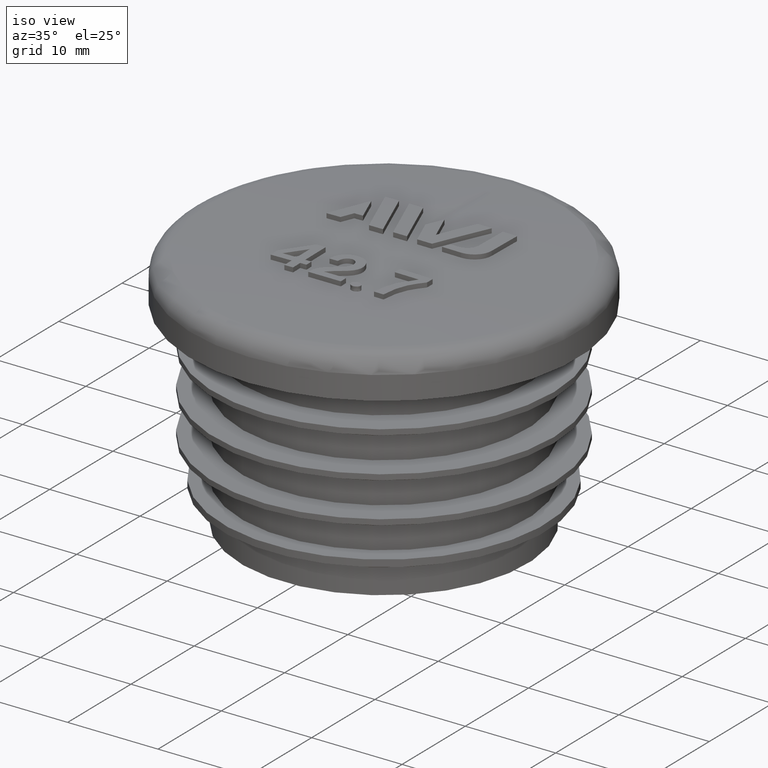
[diagram: clean part render]
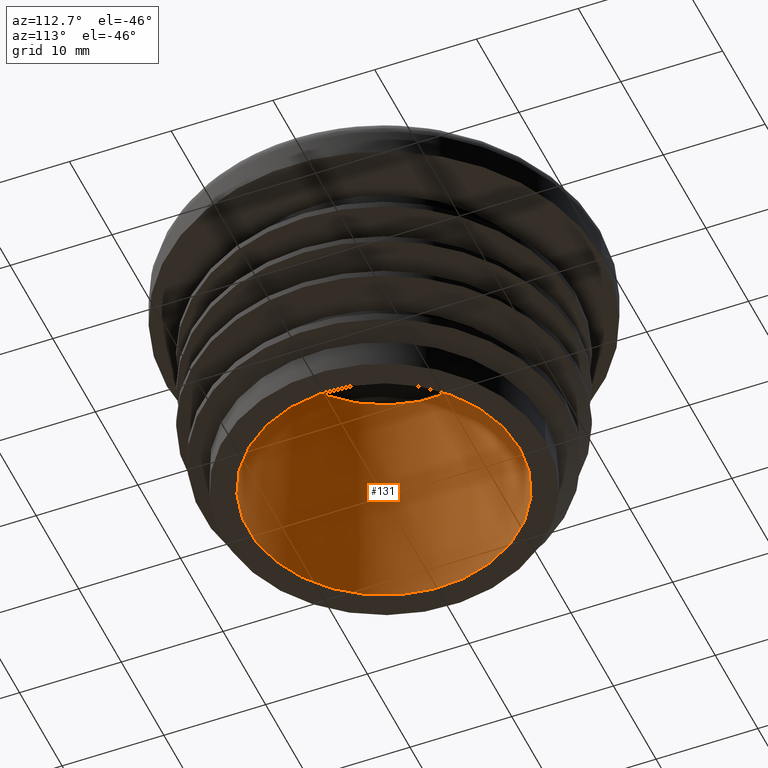
[diagram: tour spotlight — one face highlighted and labeled with its STEP entity id]
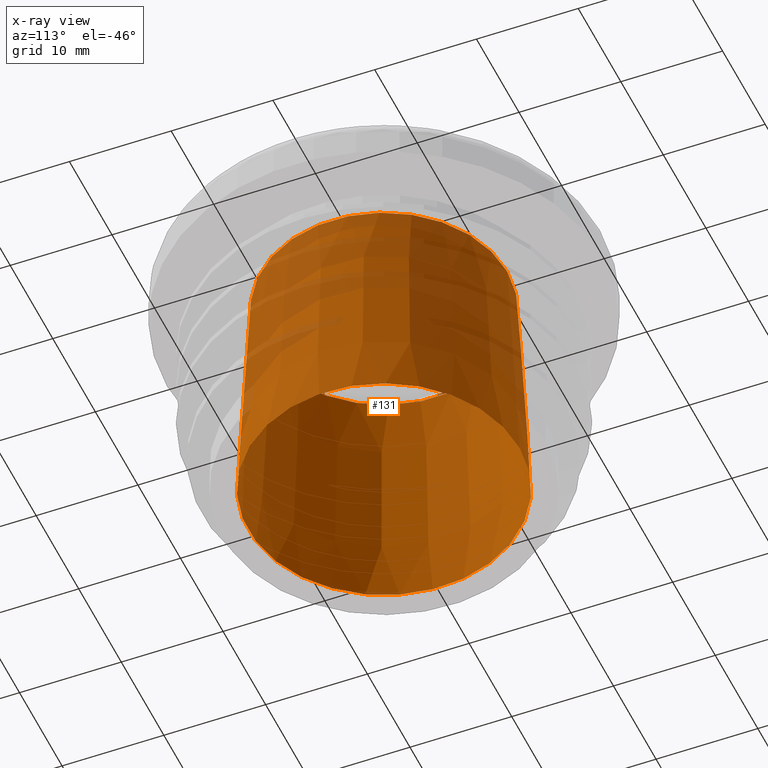
[diagram: x-ray of the same camera — body ghosted, this tour face saturated]
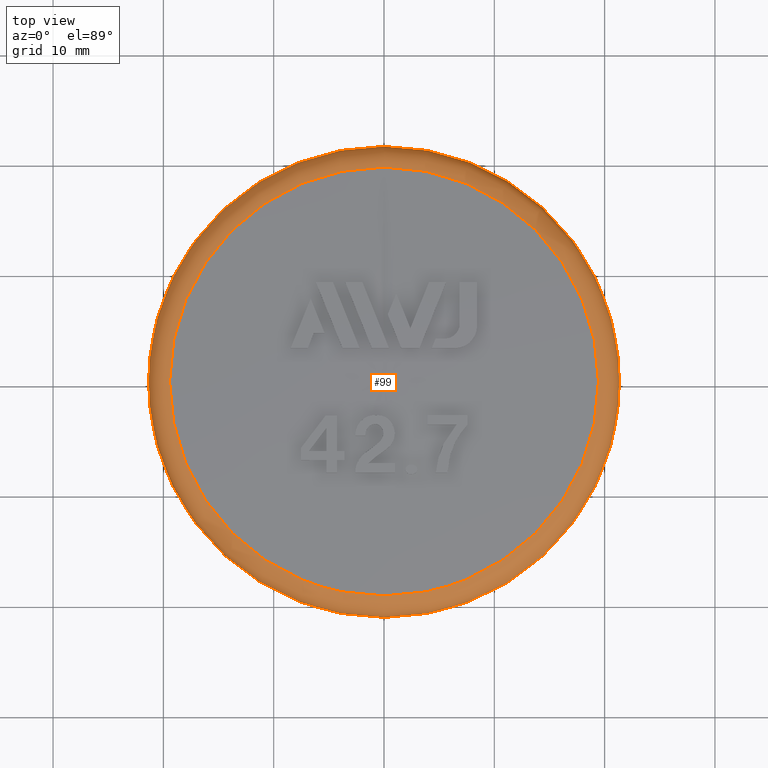
[diagram: tour spotlight — one face highlighted and labeled with its STEP entity id]
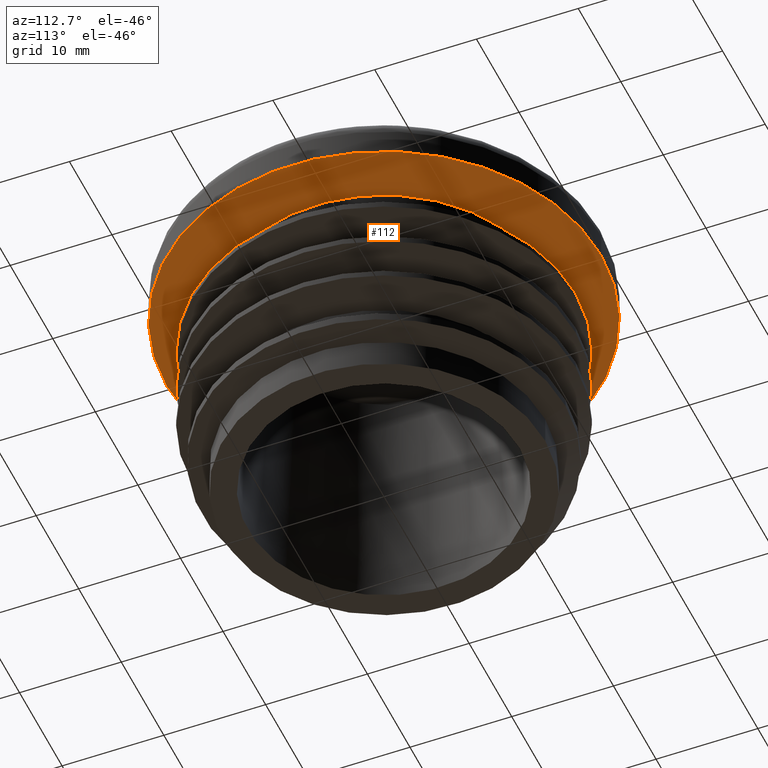
[diagram: tour spotlight — one face highlighted and labeled with its STEP entity id]
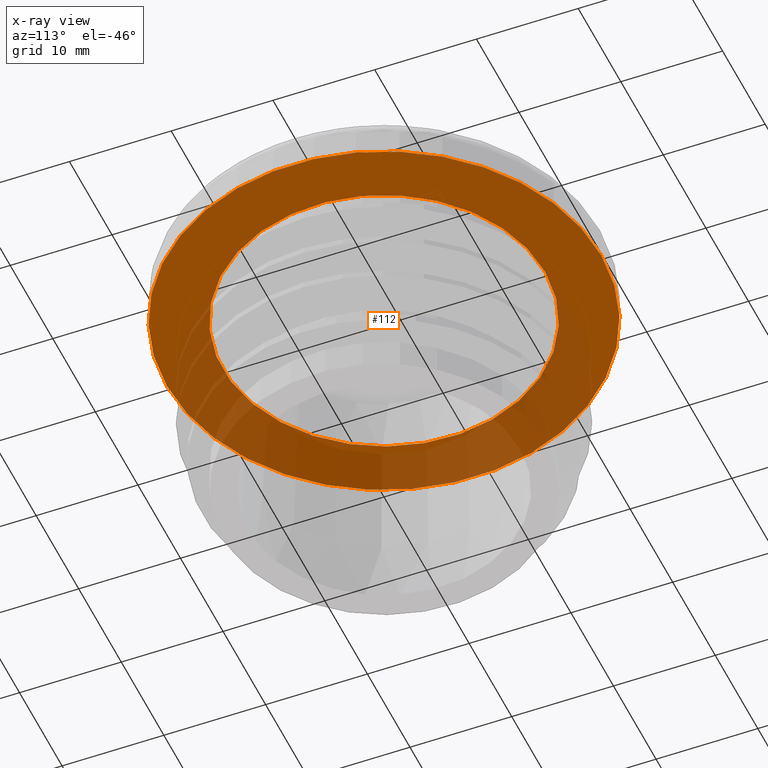
[diagram: x-ray of the same camera — body ghosted, this tour face saturated]
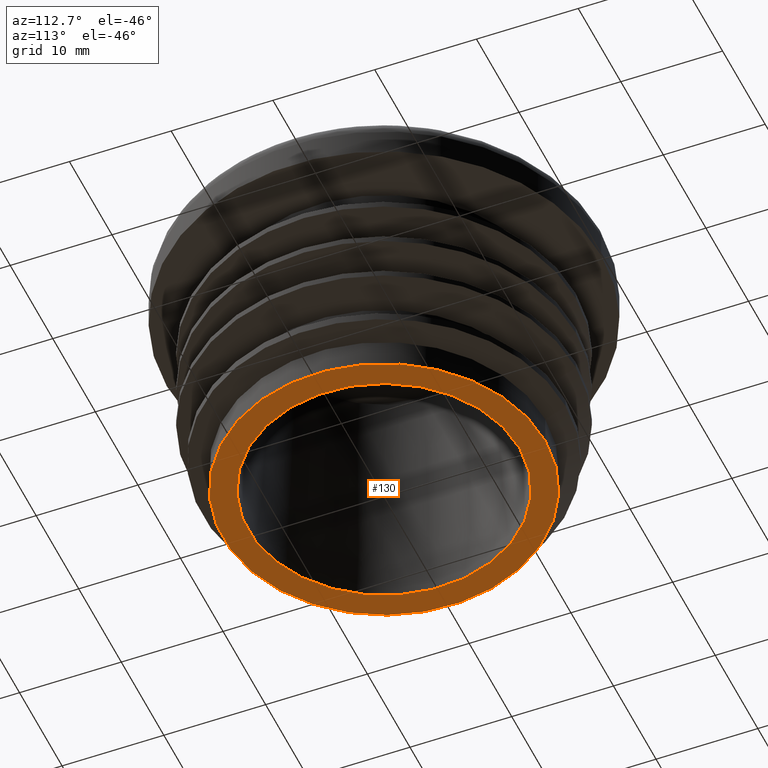
[diagram: tour spotlight — one face highlighted and labeled with its STEP entity id]
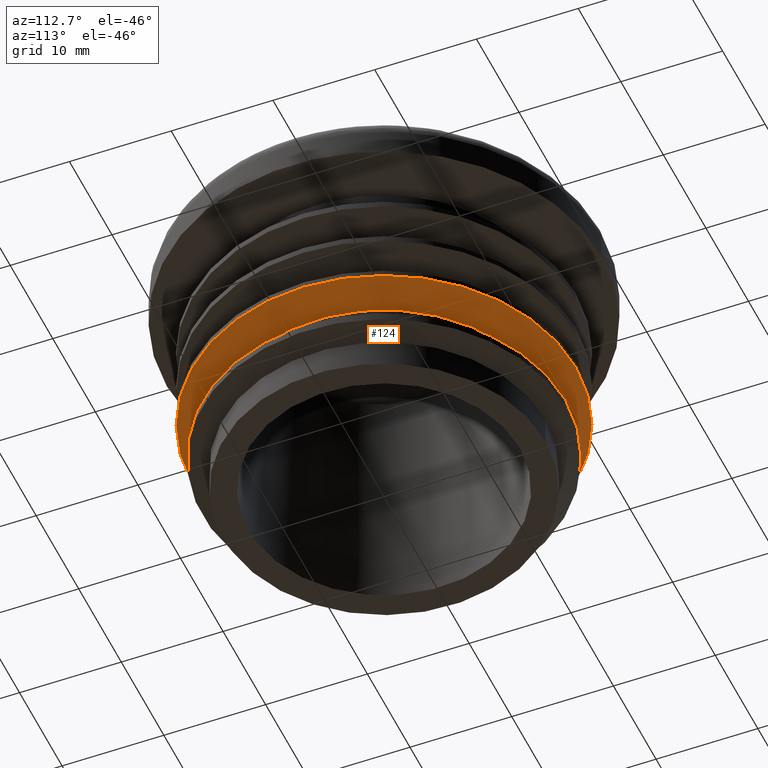
[diagram: tour spotlight — one face highlighted and labeled with its STEP entity id]
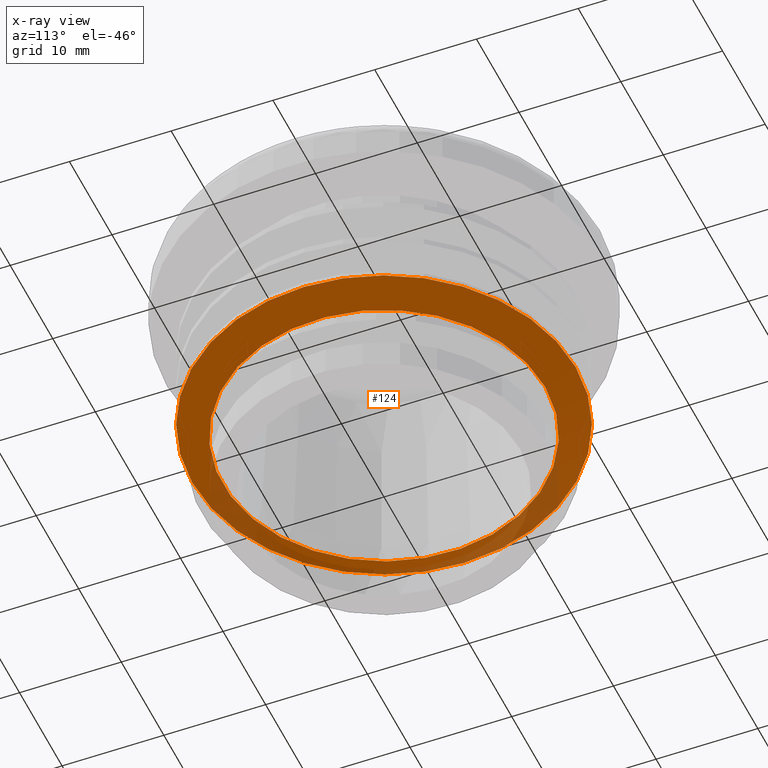
[diagram: x-ray of the same camera — body ghosted, this tour face saturated]
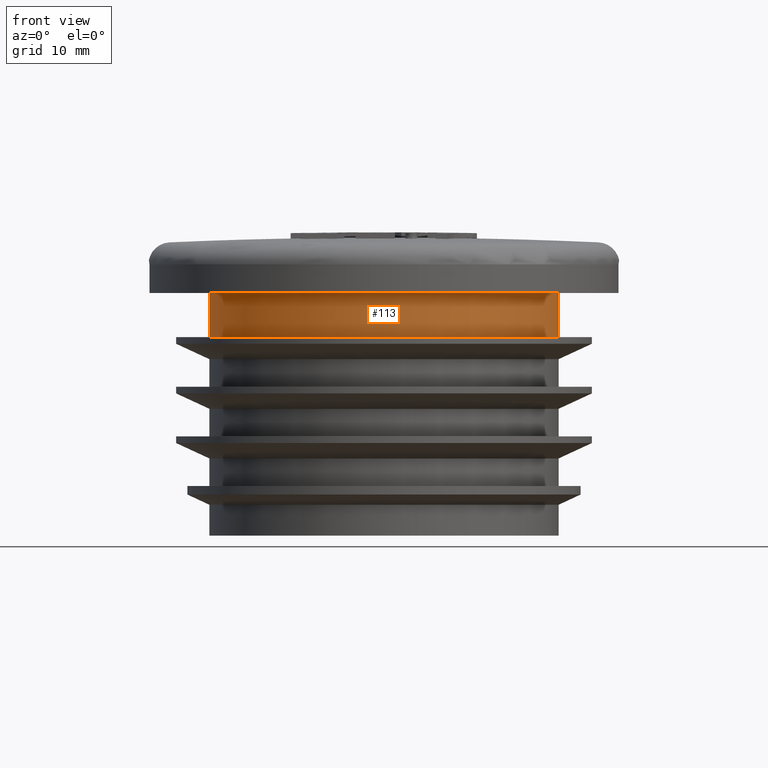
[diagram: tour spotlight — one face highlighted and labeled with its STEP entity id]
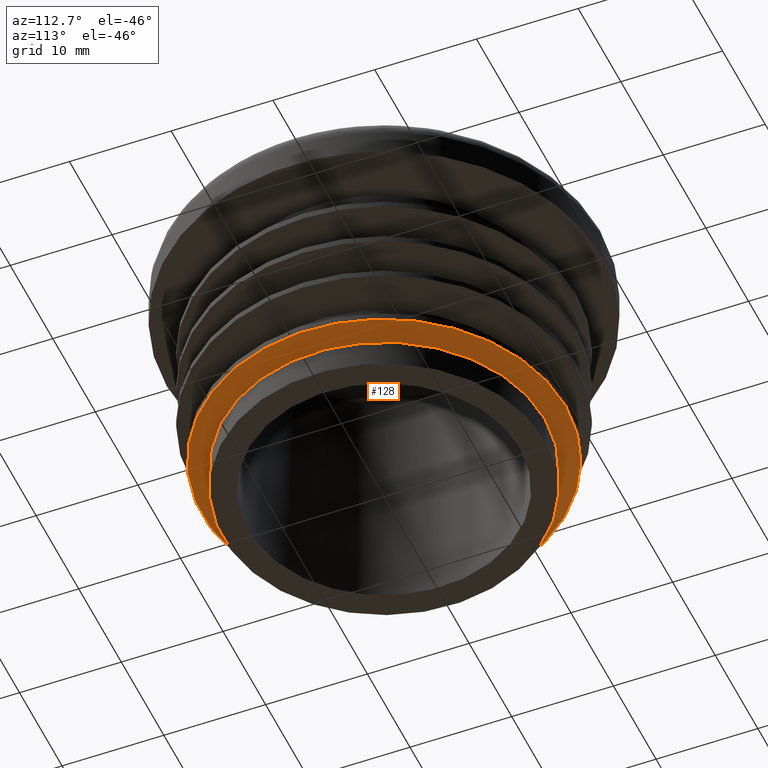
[diagram: tour spotlight — one face highlighted and labeled with its STEP entity id]
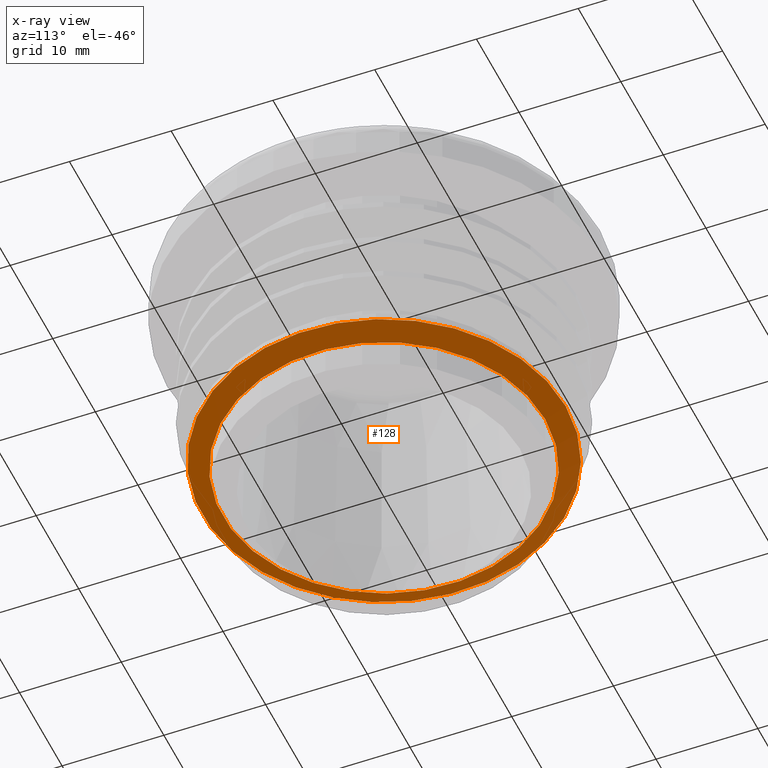
[diagram: x-ray of the same camera — body ghosted, this tour face saturated]
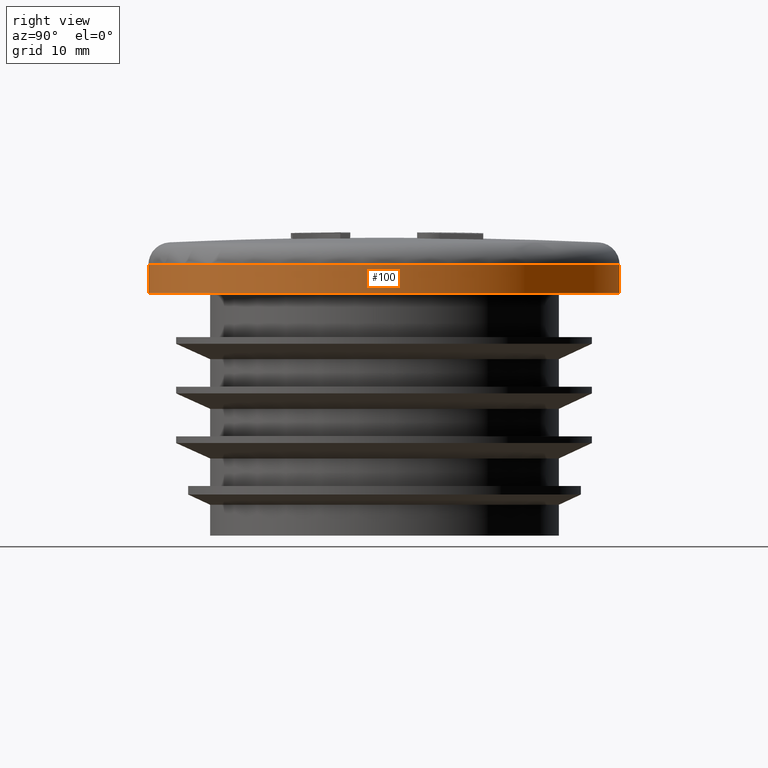
[diagram: tour spotlight — one face highlighted and labeled with its STEP entity id]
A machine part: a face-by-face anatomy tour. The part has 91 B-rep faces; the first image is the clean iso view, then the 8 largest visible faces are spotlighted one at a time (largest first), each with its STEP entity span.

Face 1 — auxiliary view, entity #131. An x-ray twin of the same camera follows (body ghosted, this face saturated) — the face is partly hidden behind the body. In plain terms, the highlighted conical surface has half-angle 3 deg.
Definition (entity closure, byte-faithful):
#131 = ADVANCED_FACE( '', ( #312, #313 ), #314, .F. );
#312 = FACE_BOUND( '', #700, .T. );
#313 = FACE_OUTER_BOUND( '', #701, .T. );
#314 = CONICAL_SURFACE( '', #702, 13.3500000000000, 0.0523598775598292 );
#700 = EDGE_LOOP( '', ( #1293 ) );
#701 = EDGE_LOOP( '', ( #1294 ) );
#702 = AXIS2_PLACEMENT_3D( '', #1295, #1296, #1297 );
#1293 = ORIENTED_EDGE( '', *, *, #1665, .F. );
#1294 = ORIENTED_EDGE( '', *, *, #1664, .T. );
#1295 = CARTESIAN_POINT( '', ( 0.000000000000000, -1.34706698920462E-015, 0.000000000000000 ) );
#1296 = DIRECTION( '', ( 0.000000000000000, -6.12303176911189E-017, -1.00000000000000 ) );
#1297 = DIRECTION( '', ( 0.000000000000000, 1.00000000000000, -6.12303176911189E-017 ) );
#1664 = EDGE_CURVE( '', #1965, #1965, #1966, .T. );
#1665 = EDGE_CURVE( '', #1967, #1967, #1968, .T. );
#1965 = VERTEX_POINT( '', #2955 );
#1966 = CIRCLE( '', #2956, 13.3500000000000 );
#1967 = VERTEX_POINT( '', #2957 );
#1968 = CIRCLE( '', #2958, 12.1156743756052 );
#2955 = CARTESIAN_POINT( '', ( 0.000000000000000, 13.3500000000000, -8.17424741176436E-016 ) );
#2956 = AXIS2_PLACEMENT_3D( '', #3261, #3262, #3263 );
#2957 = CARTESIAN_POINT( '', ( 0.000000000000000, 12.1156743756052, 23.5523359562429 ) );
#2958 = AXIS2_PLACEMENT_3D( '', #3264, #3265, #3266 );
#3261 = CARTESIAN_POINT( '', ( 0.000000000000000, -1.34706698920462E-015, 0.000000000000000 ) );
#3262 = DIRECTION( '', ( 0.000000000000000, -6.12303176911189E-017, -1.00000000000000 ) );
#3263 = DIRECTION( '', ( 0.000000000000000, 1.00000000000000, -6.12303176911189E-017 ) );
#3264 = CARTESIAN_POINT( '', ( 0.000000000000000, 9.50500237641014E-017, 23.5523359562429 ) );
#3265 = DIRECTION( '', ( 0.000000000000000, -6.12303176911189E-017, -1.00000000000000 ) );
#3266 = DIRECTION( '', ( 0.000000000000000, 1.00000000000000, -6.12303176911189E-017 ) );

Face 2 — top view, entity #99. In plain terms, the highlighted toroidal blend (fillet) surface has major radius 19.35 mm and minor (blend) radius 2 mm.
Definition (entity closure, byte-faithful):
#99 = ADVANCED_FACE( '', ( #227, #228 ), #229, .T. );
#227 = FACE_OUTER_BOUND( '', #593, .T. );
#228 = FACE_OUTER_BOUND( '', #594, .T. );
#229 = TOROIDAL_SURFACE( '', #595, 19.3500000000000, 2.00000000000000 );
#593 = EDGE_LOOP( '', ( #1113 ) );
#594 = EDGE_LOOP( '', ( #1114 ) );
#595 = AXIS2_PLACEMENT_3D( '', #1115, #1116, #1117 );
#1113 = ORIENTED_EDGE( '', *, *, #1631, .F. );
#1114 = ORIENTED_EDGE( '', *, *, #1550, .T. );
#1115 = CARTESIAN_POINT( '', ( 0.000000000000000, 1.58785247112862E-016, 24.5932455211790 ) );
#1116 = DIRECTION( '', ( 0.000000000000000, -6.12303176911189E-017, -1.00000000000000 ) );
#1117 = DIRECTION( '', ( 0.000000000000000, 1.00000000000000, -6.12303176911189E-017 ) );
#1550 = EDGE_CURVE( '', #1764, #1764, #1765, .T. );
#1631 = EDGE_CURVE( '', #1907, #1907, #1908, .T. );
#1764 = VERTEX_POINT( '', #2214 );
#1765 = CIRCLE( '', #2215, 19.4406370663974 );
#1907 = VERTEX_POINT( '', #2870 );
#1908 = CIRCLE( '', #2871, 21.3500000000000 );
#2214 = CARTESIAN_POINT( '', ( 0.000000000000000, 19.4406370663974, 26.5911906961513 ) );
#2215 = AXIS2_PLACEMENT_3D( '', #3171, #3172, #3173 );
#2870 = CARTESIAN_POINT( '', ( 0.000000000000000, 21.3500000000000, 24.5932455211790 ) );
#2871 = AXIS2_PLACEMENT_3D( '', #3193, #3194, #3195 );
#3171 = CARTESIAN_POINT( '', ( 0.000000000000000, 2.81120064905855E-016, 26.5911906961513 ) );
#3172 = DIRECTION( '', ( 0.000000000000000, -6.12303176911189E-017, -1.00000000000000 ) );
#3173 = DIRECTION( '', ( 0.000000000000000, 1.00000000000000, -6.12303176911189E-017 ) );
#3193 = CARTESIAN_POINT( '', ( 0.000000000000000, 1.58785247112862E-016, 24.5932455211790 ) );
#3194 = DIRECTION( '', ( 0.000000000000000, -6.12303176911189E-017, -1.00000000000000 ) );
#3195 = DIRECTION( '', ( 0.000000000000000, 1.00000000000000, -6.12303176911189E-017 ) );

Face 3 — auxiliary view, entity #112. An x-ray twin of the same camera follows (body ghosted, this face saturated) — the face is partly hidden behind the body. In plain terms, the highlighted planar face has unit normal (0, 0, 1).
Definition (entity closure, byte-faithful):
#112 = ADVANCED_FACE( '', ( #255, #256 ), #257, .F. );
#255 = FACE_BOUND( '', #643, .T. );
#256 = FACE_OUTER_BOUND( '', #644, .T. );
#257 = PLANE( '', #645 );
#643 = EDGE_LOOP( '', ( #1198 ) );
#644 = EDGE_LOOP( '', ( #1199 ) );
#645 = AXIS2_PLACEMENT_3D( '', #1200, #1201, #1202 );
#1198 = ORIENTED_EDGE( '', *, *, #1646, .F. );
#1199 = ORIENTED_EDGE( '', *, *, #1632, .T. );
#1200 = CARTESIAN_POINT( '', ( -21.3500000000000, -3.98316260776132E-032, 22.0000000000000 ) );
#1201 = DIRECTION( '', ( 0.000000000000000, 6.12303176911189E-017, 1.00000000000000 ) );
#1202 = DIRECTION( '', ( 0.000000000000000, -1.00000000000000, 6.12303176911189E-017 ) );
#1632 = EDGE_CURVE( '', #1909, #1909, #1910, .T. );
#1646 = EDGE_CURVE( '', #1929, #1929, #1930, .T. );
#1909 = VERTEX_POINT( '', #2872 );
#1910 = CIRCLE( '', #2873, 21.3500000000000 );
#1929 = VERTEX_POINT( '', #2919 );
#1930 = CIRCLE( '', #2920, 15.8500000000000 );
#2872 = CARTESIAN_POINT( '', ( 0.000000000000000, 21.3500000000000, 22.0000000000000 ) );
#2873 = AXIS2_PLACEMENT_3D( '', #3196, #3197, #3198 );
#2919 = CARTESIAN_POINT( '', ( 0.000000000000000, 15.8500000000000, 22.0000000000000 ) );
#2920 = AXIS2_PLACEMENT_3D( '', #3207, #3208, #3209 );
#3196 = CARTESIAN_POINT( '', ( 0.000000000000000, -7.96632521552264E-032, 22.0000000000000 ) );
#3197 = DIRECTION( '', ( 0.000000000000000, -6.12303176911189E-017, -1.00000000000000 ) );
#3198 = DIRECTION( '', ( 0.000000000000000, 1.00000000000000, -6.12303176911189E-017 ) );
#3207 = CARTESIAN_POINT( '', ( 0.000000000000000, 0.000000000000000, 22.0000000000000 ) );
#3208 = DIRECTION( '', ( 0.000000000000000, -6.12303176911189E-017, -1.00000000000000 ) );
#3209 = DIRECTION( '', ( 0.000000000000000, 1.00000000000000, -6.12303176911189E-017 ) );

Face 4 — auxiliary view, entity #130. In plain terms, the highlighted planar face has unit normal (0, 0, 1).
Definition (entity closure, byte-faithful):
#130 = ADVANCED_FACE( '', ( #309, #310 ), #311, .F. );
#309 = FACE_BOUND( '', #697, .T. );
#310 = FACE_OUTER_BOUND( '', #698, .T. );
#311 = PLANE( '', #699 );
#697 = EDGE_LOOP( '', ( #1288 ) );
#698 = EDGE_LOOP( '', ( #1289 ) );
#699 = AXIS2_PLACEMENT_3D( '', #1290, #1291, #1292 );
#1288 = ORIENTED_EDGE( '', *, *, #1664, .F. );
#1289 = ORIENTED_EDGE( '', *, *, #1663, .T. );
#1290 = CARTESIAN_POINT( '', ( -15.8500000000000, -1.34706698920461E-015, 3.46944695195361E-015 ) );
#1291 = DIRECTION( '', ( 0.000000000000000, 6.12303176911189E-017, 1.00000000000000 ) );
#1292 = DIRECTION( '', ( 0.000000000000000, -1.00000000000000, 6.12303176911189E-017 ) );
#1663 = EDGE_CURVE( '', #1963, #1963, #1964, .T. );
#1664 = EDGE_CURVE( '', #1965, #1965, #1966, .T. );
#1963 = VERTEX_POINT( '', #2953 );
#1964 = CIRCLE( '', #2954, 15.8500000000000 );
#1965 = VERTEX_POINT( '', #2955 );
#1966 = CIRCLE( '', #2956, 13.3500000000000 );
#2953 = CARTESIAN_POINT( '', ( 0.000000000000000, 15.8500000000000, 5.96839336850299E-015 ) );
#2954 = AXIS2_PLACEMENT_3D( '', #3258, #3259, #3260 );
#2955 = CARTESIAN_POINT( '', ( 0.000000000000000, 13.3500000000000, -8.17424741176436E-016 ) );
#2956 = AXIS2_PLACEMENT_3D( '', #3261, #3262, #3263 );
#3258 = CARTESIAN_POINT( '', ( 0.000000000000000, -1.34706698920461E-015, 6.93889390390723E-015 ) );
#3259 = DIRECTION( '', ( 0.000000000000000, -6.12303176911189E-017, -1.00000000000000 ) );
#3260 = DIRECTION( '', ( 0.000000000000000, 1.00000000000000, -6.12303176911189E-017 ) );
#3261 = CARTESIAN_POINT( '', ( 0.000000000000000, -1.34706698920462E-015, 0.000000000000000 ) );
#3262 = DIRECTION( '', ( 0.000000000000000, -6.12303176911189E-017, -1.00000000000000 ) );
#3263 = DIRECTION( '', ( 0.000000000000000, 1.00000000000000, -6.12303176911189E-017 ) );

Face 5 — auxiliary view, entity #124. An x-ray twin of the same camera follows (body ghosted, this face saturated) — the face is partly hidden behind the body. In plain terms, the highlighted conical surface has half-angle 65 deg.
Definition (entity closure, byte-faithful):
#124 = ADVANCED_FACE( '', ( #291, #292 ), #293, .T. );
#291 = FACE_BOUND( '', #679, .T. );
#292 = FACE_OUTER_BOUND( '', #680, .T. );
#293 = CONICAL_SURFACE( '', #681, 18.8500000000000, 1.13446401379631 );
#679 = EDGE_LOOP( '', ( #1258 ) );
#680 = EDGE_LOOP( '', ( #1259 ) );
#681 = AXIS2_PLACEMENT_3D( '', #1260, #1261, #1262 );
#1258 = ORIENTED_EDGE( '', *, *, #1658, .F. );
#1259 = ORIENTED_EDGE( '', *, *, #1657, .T. );
#1260 = CARTESIAN_POINT( '', ( 0.000000000000000, -8.32798267214885E-016, 8.39892297446501 ) );
#1261 = DIRECTION( '', ( 0.000000000000000, 6.12303176911189E-017, 1.00000000000000 ) );
#1262 = DIRECTION( '', ( 0.000000000000000, -1.00000000000000, 6.12303176911189E-017 ) );
#1657 = EDGE_CURVE( '', #1951, #1951, #1952, .T. );
#1658 = EDGE_CURVE( '', #1953, #1953, #1954, .T. );
#1951 = VERTEX_POINT( '', #2941 );
#1952 = CIRCLE( '', #2942, 18.8500000000000 );
#1953 = VERTEX_POINT( '', #2943 );
#1954 = CIRCLE( '', #2944, 15.8500000000000 );
#2941 = CARTESIAN_POINT( '', ( 0.000000000000000, 18.8500000000000, 8.39892297446501 ) );
#2942 = AXIS2_PLACEMENT_3D( '', #3240, #3241, #3242 );
#2943 = CARTESIAN_POINT( '', ( 0.000000000000000, 15.8500000000000, 6.99999999999999 ) );
#2944 = AXIS2_PLACEMENT_3D( '', #3243, #3244, #3245 );
#3240 = CARTESIAN_POINT( '', ( 0.000000000000000, -8.32798267214885E-016, 8.39892297446501 ) );
#3241 = DIRECTION( '', ( 0.000000000000000, -6.12303176911189E-017, -1.00000000000000 ) );
#3242 = DIRECTION( '', ( 0.000000000000000, 1.00000000000000, -6.12303176911189E-017 ) );
#3243 = CARTESIAN_POINT( '', ( 0.000000000000000, -9.18454765366784E-016, 6.99999999999999 ) );
#3244 = DIRECTION( '', ( 0.000000000000000, -6.12303176911189E-017, -1.00000000000000 ) );
#3245 = DIRECTION( '', ( 0.000000000000000, 1.00000000000000, -6.12303176911189E-017 ) );

Face 6 — front view, entity #113. In plain terms, the highlighted cylindrical surface (bore or boss wall) has radius 15.85 mm, axis along (0, 0, 1).
Definition (entity closure, byte-faithful):
#113 = ADVANCED_FACE( '', ( #258, #259 ), #260, .T. );
#258 = FACE_OUTER_BOUND( '', #646, .T. );
#259 = FACE_OUTER_BOUND( '', #647, .T. );
#260 = CYLINDRICAL_SURFACE( '', #648, 15.8500000000000 );
#646 = EDGE_LOOP( '', ( #1203 ) );
#647 = EDGE_LOOP( '', ( #1204 ) );
#648 = AXIS2_PLACEMENT_3D( '', #1205, #1206, #1207 );
#1203 = ORIENTED_EDGE( '', *, *, #1647, .F. );
#1204 = ORIENTED_EDGE( '', *, *, #1646, .T. );
#1205 = CARTESIAN_POINT( '', ( 0.000000000000000, 0.000000000000000, 22.0000000000000 ) );
#1206 = DIRECTION( '', ( 0.000000000000000, 6.12303176911189E-017, 1.00000000000000 ) );
#1207 = DIRECTION( '', ( 0.000000000000000, 1.00000000000000, -6.12303176911189E-017 ) );
#1646 = EDGE_CURVE( '', #1929, #1929, #1930, .T. );
#1647 = EDGE_CURVE( '', #1931, #1931, #1932, .T. );
#1929 = VERTEX_POINT( '', #2919 );
#1930 = CIRCLE( '', #2920, 15.8500000000000 );
#1931 = VERTEX_POINT( '', #2921 );
#1932 = CIRCLE( '', #2922, 15.8500000000000 );
#2919 = CARTESIAN_POINT( '', ( 0.000000000000000, 15.8500000000000, 22.0000000000000 ) );
#2920 = AXIS2_PLACEMENT_3D( '', #3207, #3208, #3209 );
#2921 = CARTESIAN_POINT( '', ( 0.000000000000000, 15.8500000000000, 18.0000000000000 ) );
#2922 = AXIS2_PLACEMENT_3D( '', #3210, #3211, #3212 );
#3207 = CARTESIAN_POINT( '', ( 0.000000000000000, 0.000000000000000, 22.0000000000000 ) );
#3208 = DIRECTION( '', ( 0.000000000000000, -6.12303176911189E-017, -1.00000000000000 ) );
#3209 = DIRECTION( '', ( 0.000000000000000, 1.00000000000000, -6.12303176911189E-017 ) );
#3210 = CARTESIAN_POINT( '', ( 0.000000000000000, -2.44921270764476E-016, 18.0000000000000 ) );
#3211 = DIRECTION( '', ( 0.000000000000000, -6.12303176911189E-017, -1.00000000000000 ) );
#3212 = DIRECTION( '', ( 0.000000000000000, 1.00000000000000, -6.12303176911189E-017 ) );

Face 7 — auxiliary view, entity #128. An x-ray twin of the same camera follows (body ghosted, this face saturated) — the face is partly hidden behind the body. In plain terms, the highlighted conical surface has half-angle 65 deg.
Definition (entity closure, byte-faithful):
#128 = ADVANCED_FACE( '', ( #303, #304 ), #305, .T. );
#303 = FACE_BOUND( '', #691, .T. );
#304 = FACE_OUTER_BOUND( '', #692, .T. );
#305 = CONICAL_SURFACE( '', #693, 17.8500000000000, 1.13446401379632 );
#691 = EDGE_LOOP( '', ( #1278 ) );
#692 = EDGE_LOOP( '', ( #1279 ) );
#693 = AXIS2_PLACEMENT_3D( '', #1280, #1281, #1282 );
#1278 = ORIENTED_EDGE( '', *, *, #1662, .F. );
#1279 = ORIENTED_EDGE( '', *, *, #1661, .T. );
#1280 = CARTESIAN_POINT( '', ( 0.000000000000000, -1.11851776756822E-015, 3.73261531631000 ) );
#1281 = DIRECTION( '', ( 0.000000000000000, 6.12303176911189E-017, 1.00000000000000 ) );
#1282 = DIRECTION( '', ( 0.000000000000000, -1.00000000000000, 6.12303176911189E-017 ) );
#1661 = EDGE_CURVE( '', #1959, #1959, #1960, .T. );
#1662 = EDGE_CURVE( '', #1961, #1961, #1962, .T. );
#1959 = VERTEX_POINT( '', #2949 );
#1960 = CIRCLE( '', #2950, 17.8500000000000 );
#1961 = VERTEX_POINT( '', #2951 );
#1962 = CIRCLE( '', #2952, 15.8500000000000 );
#2949 = CARTESIAN_POINT( '', ( 0.000000000000000, 17.8500000000000, 3.73261531631000 ) );
#2950 = AXIS2_PLACEMENT_3D( '', #3252, #3253, #3254 );
#2951 = CARTESIAN_POINT( '', ( 0.000000000000000, 15.8500000000000, 2.79999999999999 ) );
#2952 = AXIS2_PLACEMENT_3D( '', #3255, #3256, #3257 );
#3252 = CARTESIAN_POINT( '', ( 0.000000000000000, -1.11851776756822E-015, 3.73261531631000 ) );
#3253 = DIRECTION( '', ( 0.000000000000000, -6.12303176911189E-017, -1.00000000000000 ) );
#3254 = DIRECTION( '', ( 0.000000000000000, 1.00000000000000, -6.12303176911189E-017 ) );
#3255 = CARTESIAN_POINT( '', ( 0.000000000000000, -1.17562209966948E-015, 2.79999999999999 ) );
#3256 = DIRECTION( '', ( 0.000000000000000, -6.12303176911189E-017, -1.00000000000000 ) );
#3257 = DIRECTION( '', ( 0.000000000000000, 1.00000000000000, -6.12303176911189E-017 ) );

Face 8 — right view, entity #100. In plain terms, the highlighted cylindrical surface (bore or boss wall) has radius 21.35 mm, axis along (0, 0, 1).
Definition (entity closure, byte-faithful):
#100 = ADVANCED_FACE( '', ( #230, #231 ), #232, .T. );
#230 = FACE_OUTER_BOUND( '', #596, .T. );
#231 = FACE_OUTER_BOUND( '', #597, .T. );
#232 = CYLINDRICAL_SURFACE( '', #598, 21.3500000000000 );
#596 = EDGE_LOOP( '', ( #1118 ) );
#597 = EDGE_LOOP( '', ( #1119 ) );
#598 = AXIS2_PLACEMENT_3D( '', #1120, #1121, #1122 );
#1118 = ORIENTED_EDGE( '', *, *, #1632, .F. );
#1119 = ORIENTED_EDGE( '', *, *, #1631, .T. );
#1120 = CARTESIAN_POINT( '', ( 0.000000000000000, 0.000000000000000, 22.0000000000000 ) );
#1121 = DIRECTION( '', ( 0.000000000000000, 6.12303176911189E-017, 1.00000000000000 ) );
#1122 = DIRECTION( '', ( 0.000000000000000, 1.00000000000000, -6.12303176911189E-017 ) );
#1631 = EDGE_CURVE( '', #1907, #1907, #1908, .T. );
#1632 = EDGE_CURVE( '', #1909, #1909, #1910, .T. );
#1907 = VERTEX_POINT( '', #2870 );
#1908 = CIRCLE( '', #2871, 21.3500000000000 );
#1909 = VERTEX_POINT( '', #2872 );
#1910 = CIRCLE( '', #2873, 21.3500000000000 );
#2870 = CARTESIAN_POINT( '', ( 0.000000000000000, 21.3500000000000, 24.5932455211790 ) );
#2871 = AXIS2_PLACEMENT_3D( '', #3193, #3194, #3195 );
#2872 = CARTESIAN_POINT( '', ( 0.000000000000000, 21.3500000000000, 22.0000000000000 ) );
#2873 = AXIS2_PLACEMENT_3D( '', #3196, #3197, #3198 );
#3193 = CARTESIAN_POINT( '', ( 0.000000000000000, 1.58785247112862E-016, 24.5932455211790 ) );
#3194 = DIRECTION( '', ( 0.000000000000000, -6.12303176911189E-017, -1.00000000000000 ) );
#3195 = DIRECTION( '', ( 0.000000000000000, 1.00000000000000, -6.12303176911189E-017 ) );
#3196 = CARTESIAN_POINT( '', ( 0.000000000000000, -7.96632521552264E-032, 22.0000000000000 ) );
#3197 = DIRECTION( '', ( 0.000000000000000, -6.12303176911189E-017, -1.00000000000000 ) );
#3198 = DIRECTION( '', ( 0.000000000000000, 1.00000000000000, -6.12303176911189E-017 ) );